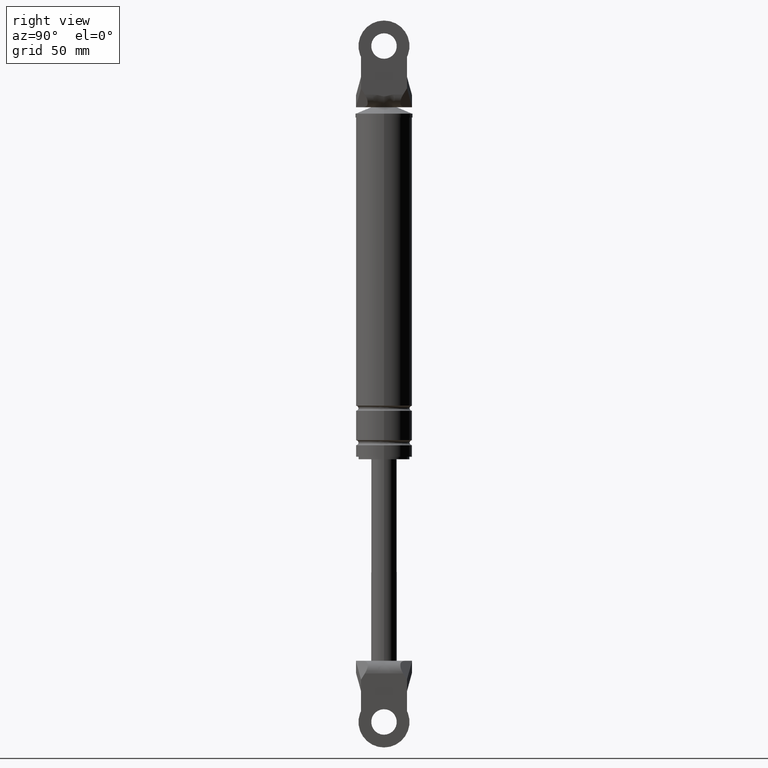
[diagram: clean part render]
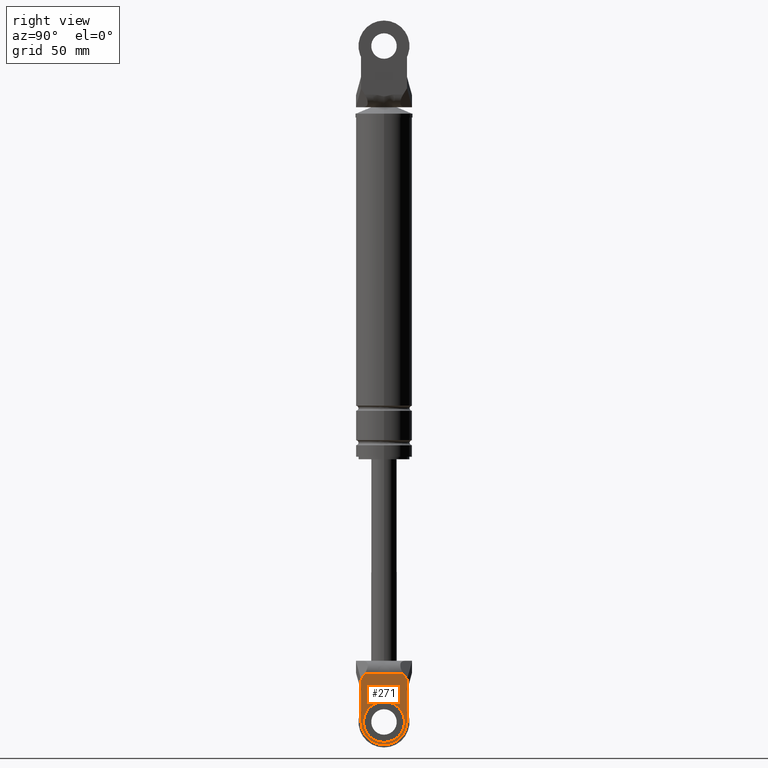
[diagram: same view with one face highlighted and labeled with its STEP entity id]
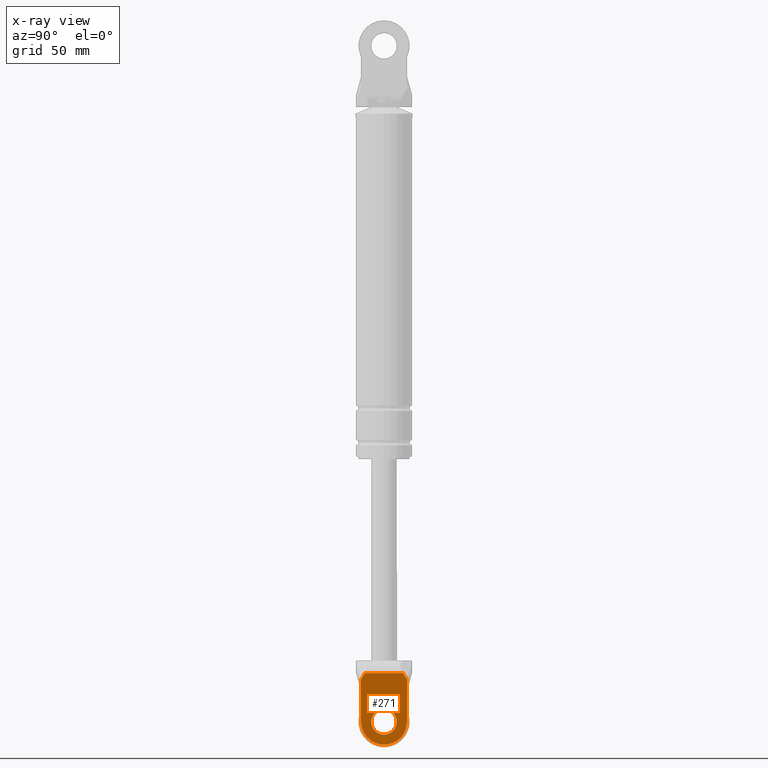
[diagram: x-ray of the same camera — body ghosted, the highlighted face saturated]
A machine part, right view. The second image highlights one B-rep face of the part: STEP entity #271.
The next image is the same camera in x-ray: the body ghosted, the highlighted face saturated — about 0% of this face is hidden behind the body in this view.
In plain terms, the highlighted planar face has unit normal (1, 0, 0).
Its self-contained STEP definition (entity closure, byte-faithful):
#271=ADVANCED_FACE('',(#968,#969),#967,.T.);
#967=PLANE('',#1652);
#968=FACE_OUTER_BOUND('',#1653,.T.);
#969=FACE_BOUND('',#1654,.T.);
#1649=CARTESIAN_POINT('',(7.00000000000E+000,-1.08000008639E+001,-1.30088870872E+002));
#1650=DIRECTION('',(1.00000000000E+000,0.00000000000E+000,0.00000000000E+000));
#1651=DIRECTION('',(0.00000000000E+000,0.00000000000E+000,-1.00000000000E+000));
#1652=AXIS2_PLACEMENT_3D('',#1649,#1650,#1651);
#1653=EDGE_LOOP('',(#2097,#2098,#2099,#2100,#2101,#2102,#2103,#2104,#2105,#2106));
#1654=EDGE_LOOP('',(#2107,#2108));
#2097=ORIENTED_EDGE('',*,*,#2334,.T.);
#2098=ORIENTED_EDGE('',*,*,#2313,.T.);
#2099=ORIENTED_EDGE('',*,*,#2354,.T.);
#2100=ORIENTED_EDGE('',*,*,#2355,.T.);
#2101=ORIENTED_EDGE('',*,*,#2329,.T.);
#2102=ORIENTED_EDGE('',*,*,#2356,.F.);
#2103=ORIENTED_EDGE('',*,*,#2335,.F.);
#2104=ORIENTED_EDGE('',*,*,#2339,.T.);
#2105=ORIENTED_EDGE('',*,*,#2342,.F.);
#2106=ORIENTED_EDGE('',*,*,#2352,.T.);
#2107=ORIENTED_EDGE('',*,*,#2357,.F.);
#2108=ORIENTED_EDGE('',*,*,#2358,.F.);
#2313=EDGE_CURVE('',#3237,#3258,#3265,.T.);
#2329=EDGE_CURVE('',#3375,#3368,#3376,.T.);
#2334=EDGE_CURVE('',#3389,#3237,#3409,.T.);
#2335=EDGE_CURVE('',#3415,#3416,#3417,.T.);
#2339=EDGE_CURVE('',#3415,#3443,#3444,.T.);
#2342=EDGE_CURVE('',#3463,#3443,#3464,.T.);
#2352=EDGE_CURVE('',#3463,#3389,#3529,.T.);
#2354=EDGE_CURVE('',#3258,#3541,#3542,.T.);
#2355=EDGE_CURVE('',#3541,#3375,#3548,.T.);
#2356=EDGE_CURVE('',#3416,#3368,#3554,.T.);
#2357=EDGE_CURVE('',#3560,#3561,#3562,.T.);
#2358=EDGE_CURVE('',#3561,#3560,#3568,.T.);
#3237=VERTEX_POINT('',#4236);
#3258=VERTEX_POINT('',#4248);
#3265=LINE('',#4253,#4254);
#3368=VERTEX_POINT('',#4314);
#3375=VERTEX_POINT('',#4318);
#3376=LINE('',#4319,#4320);
#3389=VERTEX_POINT('',#4326);
#3409=LINE('',#4337,#4338);
#3415=VERTEX_POINT('',#4340);
#3416=VERTEX_POINT('',#4341);
#3417=LINE('',#4342,#4343);
#3443=VERTEX_POINT('',#4356);
#3444=CIRCLE('',#4360,9.00000000000E+000);
#3463=VERTEX_POINT('',#4369);
#3464=LINE('',#4370,#4371);
#3529=LINE('',#4407,#4408);
#3541=VERTEX_POINT('',#4413);
#3542=(BOUNDED_CURVE() B_SPLINE_CURVE(3,(#4414,#4415,#4416,#4417,#4418,#4419),.UNSPECIFIED.,.F.,.F.) B_SPLINE_CURVE_WITH_KNOTS((4,2,4),(0.00000000000E+000,2.23783750894E-003,4.47567501788E-003),.UNSPECIFIED.) CURVE() GEOMETRIC_REPRESENTATION_ITEM() RATIONAL_B_SPLINE_CURVE((1.00000000000E+000,1.00000000000E+000,1.00000000000E+000,1.00000000000E+000,1.00000000000E+000,1.00000000000E+000)) REPRESENTATION_ITEM('') );
#3548=LINE('',#4420,#4421);
#3554=LINE('',#4423,#4424);
#3560=VERTEX_POINT('',#4426);
#3561=VERTEX_POINT('',#4427);
#3562=CIRCLE('',#4431,5.00000000000E+000);
#3568=CIRCLE('',#4435,5.00000000000E+000);
#4236=CARTESIAN_POINT('',(7.00000000000E+000,7.51280740496E+000,-1.33000015000E+002));
#4248=CARTESIAN_POINT('',(7.00000000000E+000,2.23606797750E+000,-1.33000015000E+002));
#4253=CARTESIAN_POINT('',(7.00000000000E+000,7.51280740496E+000,-1.33000015000E+002));
#4254=VECTOR('',#4255,5.27673942746E+000);
#4255=DIRECTION('',(0.00000000000E+000,-1.00000000000E+000,0.00000000000E+000));
#4314=CARTESIAN_POINT('',(7.00000000000E+000,-9.00000000000E+000,-1.35379525618E+002));
#4318=CARTESIAN_POINT('',(7.00000000000E+000,-7.51280740496E+000,-1.33000015000E+002));
#4319=CARTESIAN_POINT('',(7.00000000000E+000,-7.51280740496E+000,-1.33000015000E+002));
#4320=VECTOR('',#4321,2.80603146760E+000);
#4321=DIRECTION('',(0.00000000000E+000,-5.29998544994E-001,-8.47998550886E-001));
#4326=CARTESIAN_POINT('',(7.00000000000E+000,9.00000000000E+000,-1.35379525618E+002));
#4337=CARTESIAN_POINT('',(7.00000000000E+000,9.00000000000E+000,-1.35379525618E+002));
#4338=VECTOR('',#4339,2.80603146760E+000);
#4339=DIRECTION('',(0.00000000000E+000,-5.29998544994E-001,8.47998550886E-001));
#4340=CARTESIAN_POINT('',(7.00000000000E+000,-9.00000000000E+000,-1.52000014215E+002));
#4341=CARTESIAN_POINT('',(7.00000000000E+000,-9.00000000000E+000,-1.40000015000E+002));
#4342=CARTESIAN_POINT('',(7.00000000000E+000,-9.00000000000E+000,-1.52000014215E+002));
#4343=VECTOR('',#4344,1.19999992146E+001);
#4344=DIRECTION('',(0.00000000000E+000,0.00000000000E+000,1.00000000000E+000));
#4356=CARTESIAN_POINT('',(7.00000000000E+000,9.00000000000E+000,-1.52000015000E+002));
#4357=CARTESIAN_POINT('',(7.00000000000E+000,3.58204186421E-014,-1.52000015000E+002));
#4358=DIRECTION('',(1.00000000000E+000,0.00000000000E+000,0.00000000000E+000));
#4359=DIRECTION('',(-0.00000000000E+000,-0.00000000000E+000,1.00000000000E+000));
#4360=AXIS2_PLACEMENT_3D('',#4357,#4358,#4359);
#4369=CARTESIAN_POINT('',(7.00000000000E+000,9.00000000000E+000,-1.40000015000E+002));
#4370=CARTESIAN_POINT('',(7.00000000000E+000,9.00000000000E+000,-1.40000015000E+002));
#4371=VECTOR('',#4372,1.20000000000E+001);
#4372=DIRECTION('',(0.00000000000E+000,0.00000000000E+000,-1.00000000000E+000));
#4407=CARTESIAN_POINT('',(7.00000000000E+000,9.00000000000E+000,-1.40000015000E+002));
#4408=VECTOR('',#4409,4.62048938173E+000);
#4409=DIRECTION('',(0.00000000000E+000,0.00000000000E+000,1.00000000000E+000));
#4413=CARTESIAN_POINT('',(7.00000000000E+000,-2.23606797750E+000,-1.33000015000E+002));
#4414=CARTESIAN_POINT('',(7.00000000000E+000,2.23606797750E+000,-1.33000015000E+002));
#4415=CARTESIAN_POINT('',(7.00000000000E+000,1.48981762792E+000,-1.33000015000E+002));
#4416=CARTESIAN_POINT('',(7.00000000000E+000,7.45452759221E-001,-1.32899014059E+002));
#4417=CARTESIAN_POINT('',(7.00000000000E+000,-7.44938146996E-001,-1.32898974919E+002));
#4418=CARTESIAN_POINT('',(7.00000000000E+000,-1.48943110925E+000,-1.33000015000E+002));
#4419=CARTESIAN_POINT('',(7.00000000000E+000,-2.23606797750E+000,-1.33000015000E+002));
#4420=CARTESIAN_POINT('',(7.00000000000E+000,-2.23606797750E+000,-1.33000015000E+002));
#4421=VECTOR('',#4422,5.27673942746E+000);
#4422=DIRECTION('',(0.00000000000E+000,-1.00000000000E+000,0.00000000000E+000));
#4423=CARTESIAN_POINT('',(7.00000000000E+000,-9.00000000000E+000,-1.40000015000E+002));
#4424=VECTOR('',#4425,4.62048938173E+000);
#4425=DIRECTION('',(0.00000000000E+000,0.00000000000E+000,1.00000000000E+000));
#4426=CARTESIAN_POINT('',(7.00000000000E+000,3.58231962612E-014,-1.47000015000E+002));
#4427=CARTESIAN_POINT('',(7.00000000000E+000,3.58204186421E-014,-1.57000015000E+002));
#4428=CARTESIAN_POINT('',(7.00000000000E+000,3.58204186421E-014,-1.52000015000E+002));
#4429=DIRECTION('',(1.00000000000E+000,0.00000000000E+000,0.00000000000E+000));
#4430=DIRECTION('',(0.00000000000E+000,-1.22460635382E-016,-1.00000000000E+000));
#4431=AXIS2_PLACEMENT_3D('',#4428,#4429,#4430);
#4432=CARTESIAN_POINT('',(7.00000000000E+000,3.58204186421E-014,-1.52000015000E+002));
#4433=DIRECTION('',(1.00000000000E+000,0.00000000000E+000,0.00000000000E+000));
#4434=DIRECTION('',(0.00000000000E+000,-1.22460635382E-016,-1.00000000000E+000));
#4435=AXIS2_PLACEMENT_3D('',#4432,#4433,#4434);